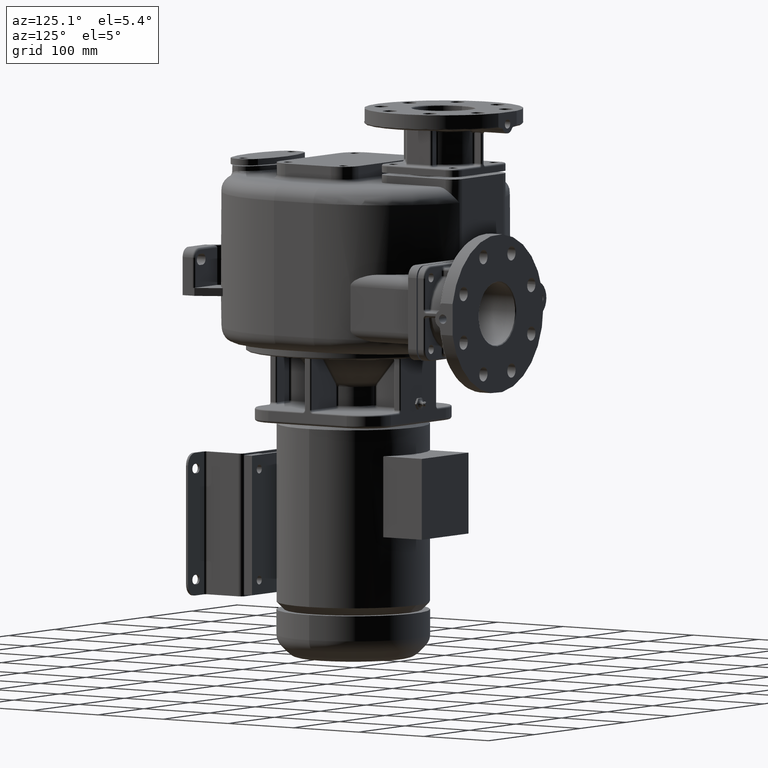
[diagram: clean part render]
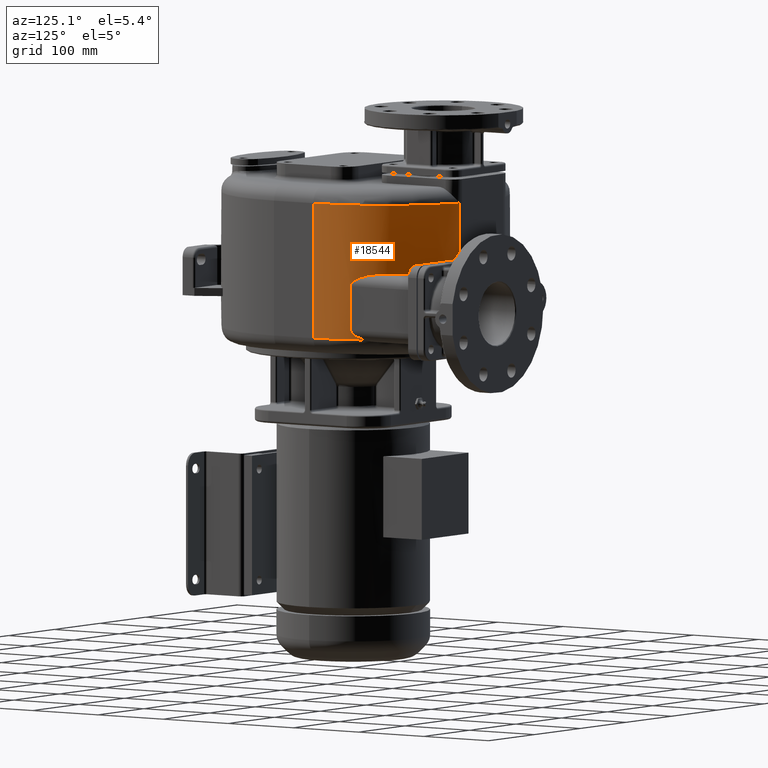
[diagram: same view with one face highlighted and labeled with its STEP entity id]
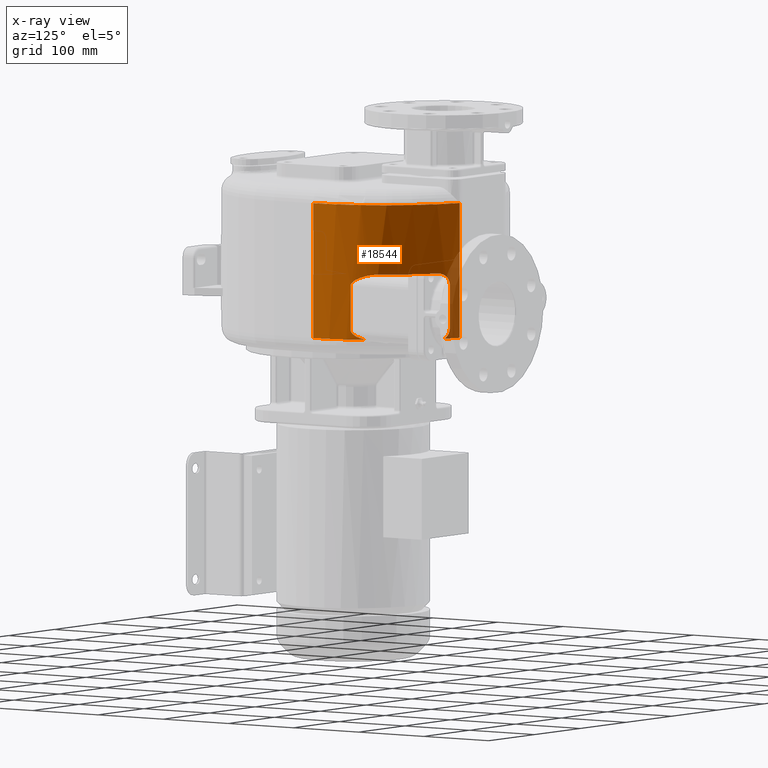
[diagram: x-ray of the same camera — body ghosted, the highlighted face saturated]
A machine part, auxiliary view. The second image highlights one B-rep face of the part: STEP entity #18544.
The next image is the same camera in x-ray: the body ghosted, the highlighted face saturated — about 6% of this face is hidden behind the body in this view.
In plain terms, the highlighted cylindrical surface (partial cylindrical patch) has radius 157 mm, axis along (0, 0, -1).
Its self-contained STEP definition (entity closure, byte-faithful):
#1608=CARTESIAN_POINT('',(6.575347980245E1,2.092268910788E2,1.175000000315E2));
#1609=CARTESIAN_POINT('',(6.575347980245E1,2.092268910788E2,1.363888889181E2));
#1610=CARTESIAN_POINT('',(6.575354041144E1,2.092268708281E2,1.741666666906E2));
#1611=CARTESIAN_POINT('',(6.575351561685E1,2.092268791124E2,2.308333333567E2));
#1612=CARTESIAN_POINT('',(6.575352112676E1,2.092268772715E2,2.686111111202E2));
#1613=CARTESIAN_POINT('',(6.575352112676E1,2.092268772715E2,2.875E2));
#1634=DIRECTION('',(0.E0,0.E0,-1.E0));
#1635=VECTOR('',#1634,5.5E1);
#1636=CARTESIAN_POINT('',(7.95E1,2.039042356408E2,1.85E2));
#1637=LINE('',#1636,#1635);
#1638=CARTESIAN_POINT('',(1.6E1,6.031889516343E1,2.E2));
#1639=DIRECTION('',(0.E0,0.E0,-1.E0));
#1640=DIRECTION('',(5.E-1,8.660254037844E-1,0.E0));
#1641=AXIS2_PLACEMENT_3D('',#1638,#1639,#1640);
#1643=DIRECTION('',(0.E0,0.E0,-1.E0));
#1644=VECTOR('',#1643,5.5E1);
#1645=CARTESIAN_POINT('',(1.645E2,1.112772114621E2,1.85E2));
#1646=LINE('',#1645,#1644);
#1647=CARTESIAN_POINT('',(1.6E1,6.031889516343E1,2.875E2));
#1648=DIRECTION('',(0.E0,0.E0,1.E0));
#1649=DIRECTION('',(1.E0,0.E0,0.E0));
#1650=AXIS2_PLACEMENT_3D('',#1647,#1648,#1649);
#1652=CARTESIAN_POINT('',(1.6E1,6.031889516343E1,1.175E2));
#1653=DIRECTION('',(0.E0,0.E0,1.E0));
#1654=DIRECTION('',(1.E0,0.E0,0.E0));
#1655=AXIS2_PLACEMENT_3D('',#1652,#1653,#1654);
#1662=CARTESIAN_POINT('',(1.6E1,6.031889516343E1,1.175E2));
#1663=DIRECTION('',(0.E0,0.E0,1.E0));
#1664=DIRECTION('',(4.471875033383E-1,8.944402366050E-1,0.E0));
#1665=AXIS2_PLACEMENT_3D('',#1662,#1663,#1664);
#1683=CARTESIAN_POINT('',(1.577915619759E2,1.277292278465E2,1.175E2));
#1685=CARTESIAN_POINT('',(1.577915619759E2,1.277292278465E2,1.175E2));
#1686=CARTESIAN_POINT('',(1.579774114180E2,1.273383102876E2,1.176232785734E2));
#1687=CARTESIAN_POINT('',(1.583406059592E2,1.265660400700E2,1.178761052002E2));
#1688=CARTESIAN_POINT('',(1.588617860967E2,1.254342601203E2,1.182740479278E2));
#1689=CARTESIAN_POINT('',(1.593562420937E2,1.243380424825E2,1.186867327161E2));
#1690=CARTESIAN_POINT('',(1.598228078874E2,1.232825614001E2,1.191110638367E2));
#1691=CARTESIAN_POINT('',(1.602595836933E2,1.222749525463E2,1.195427825042E2));
#1692=CARTESIAN_POINT('',(1.606660566391E2,1.213194705353E2,1.199783404927E2));
#1693=CARTESIAN_POINT('',(1.610422113800E2,1.204192546658E2,1.204143956315E2));
#1694=CARTESIAN_POINT('',(1.613881435205E2,1.195771800803E2,1.208473842143E2));
#1695=CARTESIAN_POINT('',(1.617050404126E2,1.187933455383E2,1.212748982751E2));
#1696=CARTESIAN_POINT('',(1.619938860405E2,1.180681077680E2,1.216942679077E2));
#1697=CARTESIAN_POINT('',(1.622558094013E2,1.174012463614E2,1.221029013661E2));
#1698=CARTESIAN_POINT('',(1.624933149777E2,1.167887124546E2,1.225005323173E2));
#1699=CARTESIAN_POINT('',(1.627086549914E2,1.162266844507E2,1.228870686090E2));
#1700=CARTESIAN_POINT('',(1.629040359933E2,1.157111059609E2,1.232628484497E2));
#1701=CARTESIAN_POINT('',(1.630816139096E2,1.152377129321E2,1.236287690908E2));
#1702=CARTESIAN_POINT('',(1.632421143219E2,1.148058090159E2,1.239831620341E2));
#1703=CARTESIAN_POINT('',(1.633864081142E2,1.144141736040E2,1.243245013260E2));
#1704=CARTESIAN_POINT('',(1.635161965385E2,1.140591481479E2,1.246534099018E2));
#1705=CARTESIAN_POINT('',(1.636330456666E2,1.137372366846E2,1.249707295357E2));
#1706=CARTESIAN_POINT('',(1.637384344645E2,1.134450095583E2,1.252776449268E2));
#1707=CARTESIAN_POINT('',(1.638332504684E2,1.131805425714E2,1.255740652944E2));
#1708=CARTESIAN_POINT('',(1.639185178887E2,1.129414324329E2,1.258605565945E2));
#1709=CARTESIAN_POINT('',(1.639952089621E2,1.127253250070E2,1.261379414217E2));
#1710=CARTESIAN_POINT('',(1.640640527267E2,1.125304750350E2,1.264065229543E2));
#1711=CARTESIAN_POINT('',(1.641258319066E2,1.123549240043E2,1.266671032736E2));
#1712=CARTESIAN_POINT('',(1.641812944257E2,1.121967552657E2,1.269208125398E2));
#1713=CARTESIAN_POINT('',(1.642308801662E2,1.120548872040E2,1.271677447829E2));
#1714=CARTESIAN_POINT('',(1.642750525793E2,1.119281397378E2,1.274082380144E2));
#1715=CARTESIAN_POINT('',(1.643143516841E2,1.118150825252E2,1.276434173630E2));
#1716=CARTESIAN_POINT('',(1.643491168214E2,1.117148369841E2,1.278736440328E2));
#1717=CARTESIAN_POINT('',(1.643796492120E2,1.116266161032E2,1.280992294102E2));
#1718=CARTESIAN_POINT('',(1.644062293997E2,1.115496767534E2,1.283205343956E2));
#1719=CARTESIAN_POINT('',(1.644291815971E2,1.114831351635E2,1.285387200277E2));
#1720=CARTESIAN_POINT('',(1.644486682357E2,1.114265647495E2,1.287539430017E2));
#1721=CARTESIAN_POINT('',(1.644648381343E2,1.113795698584E2,1.289663097196E2));
#1722=CARTESIAN_POINT('',(1.644778303169E2,1.113417754636E2,1.291759052215E2));
#1723=CARTESIAN_POINT('',(1.644878032617E2,1.113127428933E2,1.293835337971E2));
#1724=CARTESIAN_POINT('',(1.644948552200E2,1.112922025784E2,1.295896267026E2));
#1725=CARTESIAN_POINT('',(1.644990652908E2,1.112799354637E2,1.297948788596E2));
#1726=CARTESIAN_POINT('',(1.645E2,1.112772114621E2,1.299316681826E2));
#1727=CARTESIAN_POINT('',(1.645E2,1.112772114621E2,1.3E2));
#1742=CARTESIAN_POINT('',(7.95E1,2.039042356408E2,1.3E2));
#1743=CARTESIAN_POINT('',(7.95E1,2.039042356408E2,1.298540586880E2));
#1744=CARTESIAN_POINT('',(7.950425967353E1,2.039023519318E2,1.295621135802E2));
#1745=CARTESIAN_POINT('',(7.952344486648E1,2.038938658319E2,1.291243107373E2));
#1746=CARTESIAN_POINT('',(7.955541699635E1,2.038797169272E2,1.286872107202E2));
#1747=CARTESIAN_POINT('',(7.960011872968E1,2.038599204051E2,1.282514098962E2));
#1748=CARTESIAN_POINT('',(7.965760236365E1,2.038344388444E2,1.278165541478E2));
#1749=CARTESIAN_POINT('',(7.972783668170E1,2.038032676950E2,1.273832432875E2));
#1750=CARTESIAN_POINT('',(7.981072285965E1,2.037664284831E2,1.269521461568E2));
#1751=CARTESIAN_POINT('',(7.990628535920E1,2.037238840252E2,1.265232261815E2));
#1752=CARTESIAN_POINT('',(8.001454685303E1,2.036755937539E2,1.260966296235E2));
#1753=CARTESIAN_POINT('',(8.013540823443E1,2.036215673661E2,1.256729685733E2));
#1754=CARTESIAN_POINT('',(8.026869858639E1,2.035618432329E2,1.252529057271E2));
#1755=CARTESIAN_POINT('',(8.041457251687E1,2.034963099822E2,1.248361007189E2));
#1756=CARTESIAN_POINT('',(8.057293294331E1,2.034249648632E2,1.244230730989E2));
#1757=CARTESIAN_POINT('',(8.074362257130E1,2.033478288676E2,1.240143912432E2));
#1758=CARTESIAN_POINT('',(8.092650966879E1,2.032649084191E2,1.236104737727E2));
#1759=CARTESIAN_POINT('',(8.112178159326E1,2.031760611900E2,1.232110894562E2));
#1760=CARTESIAN_POINT('',(8.132922917065E1,2.030813207701E2,1.228168942469E2));
#1761=CARTESIAN_POINT('',(8.154858100674E1,2.029807471761E2,1.224285271400E2));
#1762=CARTESIAN_POINT('',(8.177997720305E1,2.028742085621E2,1.220458906086E2));
#1763=CARTESIAN_POINT('',(8.202335527249E1,2.027616616180E2,1.216693030020E2));
#1764=CARTESIAN_POINT('',(8.227845291156E1,2.026431526319E2,1.212993562084E2));
#1765=CARTESIAN_POINT('',(8.254503450639E1,2.025187141880E2,1.209365250231E2));
#1766=CARTESIAN_POINT('',(8.282333793509E1,2.023881541565E2,1.205806687802E2));
#1767=CARTESIAN_POINT('',(8.311304210366E1,2.022515380629E2,1.202324145503E2));
#1768=CARTESIAN_POINT('',(8.341382102418E1,2.021089339458E2,1.198923010180E2));
#1769=CARTESIAN_POINT('',(8.372590779121E1,2.019601417498E2,1.195602490877E2));
#1770=CARTESIAN_POINT('',(8.404899104081E1,2.018052162977E2,1.192368108923E2));
#1771=CARTESIAN_POINT('',(8.438265769993E1,2.016442623330E2,1.189225607879E2));
#1772=CARTESIAN_POINT('',(8.472709769304E1,2.014770917826E2,1.186175044465E2));
#1773=CARTESIAN_POINT('',(8.508196550308E1,2.013037722724E2,1.183221630634E2));
#1774=CARTESIAN_POINT('',(8.544689303179E1,2.011243843789E2,1.180370138266E2));
#1775=CARTESIAN_POINT('',(8.582203736165E1,2.009387483483E2,1.177621359035E2));
#1776=CARTESIAN_POINT('',(8.607858273325E1,2.008109352208E2,1.175861362554E2));
#1777=CARTESIAN_POINT('',(8.620843802411E1,2.007460123104E2,1.175E2));
#1779=CARTESIAN_POINT('',(8.620843802411E1,2.007460123104E2,1.175E2));
#1814=CARTESIAN_POINT('',(9.45E1,1.962848835576E2,2.E2));
#1815=CARTESIAN_POINT('',(9.432957188309E1,1.963832802768E2,2.E2));
#1816=CARTESIAN_POINT('',(9.398925822237E1,1.965789059500E2,1.999941923492E2));
#1817=CARTESIAN_POINT('',(9.348068354170E1,1.968687288200E2,1.999682047836E2));
#1818=CARTESIAN_POINT('',(9.297503946169E1,1.971543975415E2,1.999251464169E2));
#1819=CARTESIAN_POINT('',(9.247297954652E1,1.974356074237E2,1.998652668038E2));
#1820=CARTESIAN_POINT('',(9.197459165087E1,1.977123761376E2,1.997887384372E2));
#1821=CARTESIAN_POINT('',(9.148085410656E1,1.979842327954E2,1.996958668437E2));
#1822=CARTESIAN_POINT('',(9.099265133926E1,1.982507770010E2,1.995870352443E2));
#1823=CARTESIAN_POINT('',(9.050996131750E1,1.985121101806E2,1.994624387098E2));
#1824=CARTESIAN_POINT('',(9.003352500484E1,1.987679220589E2,1.993224438839E2));
#1825=CARTESIAN_POINT('',(8.956415181926E1,1.990178795512E2,1.991675166534E2));
#1826=CARTESIAN_POINT('',(8.910175828627E1,1.992621299485E2,1.989978410484E2));
#1827=CARTESIAN_POINT('',(8.864699128275E1,1.995004340917E2,1.988138378803E2));
#1828=CARTESIAN_POINT('',(8.820057983594E1,1.997325206160E2,1.986160369089E2));
#1829=CARTESIAN_POINT('',(8.776241861821E1,1.999585549950E2,1.984046111209E2));
#1830=CARTESIAN_POINT('',(8.733304413375E1,2.001783695195E2,1.981800088143E2));
#1831=CARTESIAN_POINT('',(8.691306828905E1,2.003917654439E2,1.979427868500E2));
#1832=CARTESIAN_POINT('',(8.650232284101E1,2.005989410746E2,1.976930650719E2));
#1833=CARTESIAN_POINT('',(8.610136623430E1,2.007997254337E2,1.974313718344E2));
#1834=CARTESIAN_POINT('',(8.571066967452E1,2.009939970208E2,1.971582547799E2));
#1835=CARTESIAN_POINT('',(8.533004171557E1,2.011819622480E2,1.968737887683E2));
#1836=CARTESIAN_POINT('',(8.496002718461E1,2.013634609077E2,1.965785698042E2));
#1837=CARTESIAN_POINT('',(8.460093131792E1,2.015384538880E2,1.962730788414E2));
#1838=CARTESIAN_POINT('',(8.425259719871E1,2.017071240116E2,1.959573786826E2));
#1839=CARTESIAN_POINT('',(8.391555286277E1,2.018693196590E2,1.956321358626E2));
#1840=CARTESIAN_POINT('',(8.358997236599E1,2.020250612529E2,1.952977526288E2));
#1841=CARTESIAN_POINT('',(8.327573298397E1,2.021745068873E2,1.949542875830E2));
#1842=CARTESIAN_POINT('',(8.297330206887E1,2.023175310868E2,1.946024331776E2));
#1843=CARTESIAN_POINT('',(8.268283207711E1,2.024541576178E2,1.942426004136E2));
#1844=CARTESIAN_POINT('',(8.240417264422E1,2.025845481400E2,1.938747818069E2));
#1845=CARTESIAN_POINT('',(8.213772339793E1,2.027086032798E2,1.934996729738E2));
#1846=CARTESIAN_POINT('',(8.188365296205E1,2.028263305492E2,1.931177454419E2));
#1847=CARTESIAN_POINT('',(8.164177400388E1,2.029378978718E2,1.927288929092E2));
#1848=CARTESIAN_POINT('',(8.141241266662E1,2.030432319517E2,1.923337851433E2));
#1849=CARTESIAN_POINT('',(8.119579190242E1,2.031423054598E2,1.919330441307E2));
#1850=CARTESIAN_POINT('',(8.099169807448E1,2.032352864717E2,1.915264590729E2));
#1851=CARTESIAN_POINT('',(8.080036090562E1,2.033221361841E2,1.911146090019E2));
#1852=CARTESIAN_POINT('',(8.062200891325E1,2.034028139446E2,1.906982145310E2));
#1853=CARTESIAN_POINT('',(8.045649827331E1,2.034774435057E2,1.902771414495E2));
#1854=CARTESIAN_POINT('',(8.030392986724E1,2.035460334173E2,1.898517574924E2));
#1855=CARTESIAN_POINT('',(8.016448650902E1,2.036085518826E2,1.894227531387E2));
#1856=CARTESIAN_POINT('',(8.003818989243E1,2.036650355342E2,1.889904415348E2));
#1857=CARTESIAN_POINT('',(7.992496568731E1,2.037155593290E2,1.885546991877E2));
#1858=CARTESIAN_POINT('',(7.982497840571E1,2.037600872849E2,1.881162502289E2));
#1859=CARTESIAN_POINT('',(7.973830795877E1,2.037986172313E2,1.876757433029E2));
#1860=CARTESIAN_POINT('',(7.966485781649E1,2.038312209345E2,1.872328731482E2));
#1861=CARTESIAN_POINT('',(7.960472333599E1,2.038578804480E2,1.867882234003E2));
#1862=CARTESIAN_POINT('',(7.955796141016E1,2.038785906579E2,1.863425354318E2));
#1863=CARTESIAN_POINT('',(7.952452525069E1,2.038933879025E2,1.858956135091E2));
#1864=CARTESIAN_POINT('',(7.950445587708E1,2.039022651725E2,1.854478613652E2));
#1865=CARTESIAN_POINT('',(7.95E1,2.039042356408E2,1.851492687740E2));
#1866=CARTESIAN_POINT('',(7.95E1,2.039042356408E2,1.85E2));
#1881=CARTESIAN_POINT('',(1.645E2,1.112772114621E2,1.85E2));
#1882=CARTESIAN_POINT('',(1.645E2,1.112772114621E2,1.850689747190E2));
#1883=CARTESIAN_POINT('',(1.644990478001E2,1.112799864387E2,1.852070886596E2));
#1884=CARTESIAN_POINT('',(1.644947516085E2,1.112925044582E2,1.854145159201E2));
#1885=CARTESIAN_POINT('',(1.644875521483E2,1.113134741856E2,1.856227520430E2));
#1886=CARTESIAN_POINT('',(1.644774012472E2,1.113430241864E2,1.858319766003E2));
#1887=CARTESIAN_POINT('',(1.644642048720E2,1.113814112959E2,1.860428991922E2));
#1888=CARTESIAN_POINT('',(1.644478120174E2,1.114290519370E2,1.862563463424E2));
#1889=CARTESIAN_POINT('',(1.644280804635E2,1.114863297895E2,1.864725267966E2));
#1890=CARTESIAN_POINT('',(1.644048734400E2,1.115536049976E2,1.866915024159E2));
#1891=CARTESIAN_POINT('',(1.643779497469E2,1.116315312602E2,1.869140820517E2));
#1892=CARTESIAN_POINT('',(1.643470199100E2,1.117208899566E2,1.871410000529E2));
#1893=CARTESIAN_POINT('',(1.643117999587E2,1.118224321701E2,1.873726110670E2));
#1894=CARTESIAN_POINT('',(1.642720259841E2,1.119368357594E2,1.876090040595E2));
#1895=CARTESIAN_POINT('',(1.642272270483E2,1.120653545975E2,1.878512469194E2));
#1896=CARTESIAN_POINT('',(1.641769405249E2,1.122091919836E2,1.880999200911E2));
#1897=CARTESIAN_POINT('',(1.641207495407E2,1.123693919174E2,1.883551707478E2));
#1898=CARTESIAN_POINT('',(1.640580408943E2,1.125475244395E2,1.886178193486E2));
#1899=CARTESIAN_POINT('',(1.639880670835E2,1.127454939793E2,1.888888270675E2));
#1900=CARTESIAN_POINT('',(1.639101672342E2,1.129649054602E2,1.891684826846E2));
#1901=CARTESIAN_POINT('',(1.638234610429E2,1.132079194971E2,1.894575863758E2));
#1902=CARTESIAN_POINT('',(1.637270035988E2,1.134767954458E2,1.897567443215E2));
#1903=CARTESIAN_POINT('',(1.636199562976E2,1.137734089512E2,1.900659722471E2));
#1904=CARTESIAN_POINT('',(1.635009185014E2,1.141010828676E2,1.903865623672E2));
#1905=CARTESIAN_POINT('',(1.633684543441E2,1.144630854049E2,1.907193374267E2));
#1906=CARTESIAN_POINT('',(1.632210785481E2,1.148626423139E2,1.910647415841E2));
#1907=CARTESIAN_POINT('',(1.630581567759E2,1.153005095111E2,1.914210310411E2));
#1908=CARTESIAN_POINT('',(1.628785129953E2,1.157787679685E2,1.917877429497E2));
#1909=CARTESIAN_POINT('',(1.626799565095E2,1.163019680747E2,1.921660625296E2));
#1910=CARTESIAN_POINT('',(1.624604034843E2,1.168740624756E2,1.925563227733E2));
#1911=CARTESIAN_POINT('',(1.622175719903E2,1.174991826058E2,1.929586820239E2));
#1912=CARTESIAN_POINT('',(1.619493431826E2,1.181806564742E2,1.933724950331E2));
#1913=CARTESIAN_POINT('',(1.616544130183E2,1.189194068643E2,1.937956112971E2));
#1914=CARTESIAN_POINT('',(1.613312997199E2,1.197165294033E2,1.942261036261E2));
#1915=CARTESIAN_POINT('',(1.609786020928E2,1.205726150914E2,1.946618010040E2));
#1916=CARTESIAN_POINT('',(1.605958920095E2,1.214856819665E2,1.950993936541E2));
#1917=CARTESIAN_POINT('',(1.601825211007E2,1.224541663948E2,1.955360373161E2));
#1918=CARTESIAN_POINT('',(1.597385923620E2,1.234746605079E2,1.959682520868E2));
#1919=CARTESIAN_POINT('',(1.592653628613E2,1.245412392561E2,1.963918910792E2));
#1920=CARTESIAN_POINT('',(1.587638543191E2,1.256487721482E2,1.968035561153E2));
#1921=CARTESIAN_POINT('',(1.582359239464E2,1.267905794899E2,1.971996231487E2));
#1922=CARTESIAN_POINT('',(1.576841231950E2,1.279589618276E2,1.975765859374E2));
#1923=CARTESIAN_POINT('',(1.571106269477E2,1.291475346025E2,1.979317877324E2));
#1924=CARTESIAN_POINT('',(1.565180940174E2,1.303493910855E2,1.982627448076E2));
#1925=CARTESIAN_POINT('',(1.559096507326E2,1.315572499888E2,1.985672707512E2));
#1926=CARTESIAN_POINT('',(1.552877214667E2,1.327657560808E2,1.988440082373E2));
#1927=CARTESIAN_POINT('',(1.546551545342E2,1.339691640947E2,1.990917538905E2));
#1928=CARTESIAN_POINT('',(1.540152457532E2,1.351613839967E2,1.993095764628E2));
#1929=CARTESIAN_POINT('',(1.533699533827E2,1.363392325509E2,1.994973465930E2));
#1930=CARTESIAN_POINT('',(1.527212171885E2,1.374997921185E2,1.996550739131E2));
#1931=CARTESIAN_POINT('',(1.520712623656E2,1.386398845036E2,1.997828836792E2));
#1932=CARTESIAN_POINT('',(1.514218777730E2,1.397573128008E2,1.998811552960E2));
#1933=CARTESIAN_POINT('',(1.507752315236E2,1.408494080840E2,1.999503616198E2));
#1934=CARTESIAN_POINT('',(1.501332375499E2,1.419141012527E2,1.999911682460E2));
#1935=CARTESIAN_POINT('',(1.497102192386E2,1.426033823614E2,2.E2));
#1936=CARTESIAN_POINT('',(1.495E2,1.429430441757E2,2.E2));
#2183=CARTESIAN_POINT('',(6.575349946129E1,2.092268839746E2,1.175045084970E2));
#3415=DIRECTION('',(0.E0,-4.810792287411E-14,1.E0));
#3416=VECTOR('',#3415,1.7E2);
#3417=CARTESIAN_POINT('',(1.73E2,6.031889516342E1,1.175E2));
#3418=LINE('',#3417,#3416);
#15741=CARTESIAN_POINT('',(1.645E2,1.112772114621E2,1.85E2));
#15743=VERTEX_POINT('',#15741);
#15745=CARTESIAN_POINT('',(1.495E2,1.429430441757E2,2.E2));
#15747=VERTEX_POINT('',#15745);
#15749=CARTESIAN_POINT('',(9.45E1,1.962848835576E2,2.E2));
#15751=VERTEX_POINT('',#15749);
#15753=CARTESIAN_POINT('',(7.95E1,2.039042356408E2,1.85E2));
#15755=VERTEX_POINT('',#15753);
#15757=CARTESIAN_POINT('',(7.95E1,2.039042356408E2,1.3E2));
#15759=VERTEX_POINT('',#15757);
#15769=CARTESIAN_POINT('',(1.645E2,1.112772114621E2,1.3E2));
#15771=VERTEX_POINT('',#15769);
#15773=VERTEX_POINT('',#1779);
#15774=VERTEX_POINT('',#1683);
#15779=CARTESIAN_POINT('',(1.73E2,6.031889516343E1,2.875E2));
#15780=CARTESIAN_POINT('',(6.575352112676E1,2.092268772715E2,2.875E2));
#15781=VERTEX_POINT('',#15779);
#15782=VERTEX_POINT('',#15780);
#15819=CARTESIAN_POINT('',(1.73E2,6.031889516342E1,1.175E2));
#15821=VERTEX_POINT('',#15819);
#15831=VERTEX_POINT('',#2183);
#18514=CARTESIAN_POINT('',(1.6E1,6.031889516343E1,9.75E1));
#18515=DIRECTION('',(0.E0,0.E0,-1.E0));
#18516=DIRECTION('',(-1.E0,0.E0,0.E0));
#18517=AXIS2_PLACEMENT_3D('',#18514,#18515,#18516);
#18518=CYLINDRICAL_SURFACE('',#18517,1.57E2);
#18520=ORIENTED_EDGE('',*,*,#18519,.F.);
#18522=ORIENTED_EDGE('',*,*,#18521,.F.);
#18524=ORIENTED_EDGE('',*,*,#18523,.F.);
#18526=ORIENTED_EDGE('',*,*,#18525,.F.);
#18528=ORIENTED_EDGE('',*,*,#18527,.T.);
#18530=ORIENTED_EDGE('',*,*,#18529,.F.);
#18532=ORIENTED_EDGE('',*,*,#18531,.T.);
#18534=ORIENTED_EDGE('',*,*,#18533,.F.);
#18536=ORIENTED_EDGE('',*,*,#18535,.F.);
#18538=ORIENTED_EDGE('',*,*,#18537,.T.);
#18540=ORIENTED_EDGE('',*,*,#18539,.T.);
#18541=ORIENTED_EDGE('',*,*,#18501,.F.);
#18542=EDGE_LOOP('',(#18520,#18522,#18524,#18526,#18528,#18530,#18532,#18534,
#18536,#18538,#18540,#18541));
#18543=FACE_OUTER_BOUND('',#18542,.F.);
#18544=ADVANCED_FACE('',(#18543),#18518,.T.);
#1614=B_SPLINE_CURVE_WITH_KNOTS('',3,(#1608,#1609,#1610,#1611,#1612,#1613),
.UNSPECIFIED.,.F.,.F.,(4,1,1,4),(0.E0,3.333333333333E-1,6.666666666667E-1,1.E0),
.UNSPECIFIED.);
#1642=CIRCLE('',#1641,1.57E2);
#1651=CIRCLE('',#1650,1.57E2);
#1656=CIRCLE('',#1655,1.57E2);
#1666=CIRCLE('',#1665,1.57E2);
#1728=B_SPLINE_CURVE_WITH_KNOTS('',3,(#1685,#1686,#1687,#1688,#1689,#1690,#1691,
#1692,#1693,#1694,#1695,#1696,#1697,#1698,#1699,#1700,#1701,#1702,#1703,#1704,
#1705,#1706,#1707,#1708,#1709,#1710,#1711,#1712,#1713,#1714,#1715,#1716,#1717,
#1718,#1719,#1720,#1721,#1722,#1723,#1724,#1725,#1726,#1727),.UNSPECIFIED.,.F.,
.F.,(4,1,1,1,1,1,1,1,1,1,1,1,1,1,1,1,1,1,1,1,1,1,1,1,1,1,1,1,1,1,1,1,1,1,1,1,1,
1,1,1,4),(0.E0,2.5E-2,5.E-2,7.5E-2,1.E-1,1.25E-1,1.5E-1,1.75E-1,2.E-1,2.25E-1,
2.5E-1,2.75E-1,3.E-1,3.25E-1,3.5E-1,3.75E-1,4.E-1,4.25E-1,4.5E-1,4.75E-1,5.E-1,
5.25E-1,5.5E-1,5.75E-1,6.E-1,6.25E-1,6.5E-1,6.75E-1,7.E-1,7.25E-1,7.5E-1,
7.75E-1,8.E-1,8.25E-1,8.5E-1,8.75E-1,9.E-1,9.25E-1,9.5E-1,9.75E-1,1.E0),
.UNSPECIFIED.);
#1778=B_SPLINE_CURVE_WITH_KNOTS('',3,(#1742,#1743,#1744,#1745,#1746,#1747,#1748,
#1749,#1750,#1751,#1752,#1753,#1754,#1755,#1756,#1757,#1758,#1759,#1760,#1761,
#1762,#1763,#1764,#1765,#1766,#1767,#1768,#1769,#1770,#1771,#1772,#1773,#1774,
#1775,#1776,#1777),.UNSPECIFIED.,.F.,.F.,(4,1,1,1,1,1,1,1,1,1,1,1,1,1,1,1,1,1,1,
1,1,1,1,1,1,1,1,1,1,1,1,1,1,4),(0.E0,3.030303030303E-2,6.060606060606E-2,
9.090909090909E-2,1.212121212121E-1,1.515151515152E-1,1.818181818182E-1,
2.121212121212E-1,2.424242424242E-1,2.727272727273E-1,3.030303030303E-1,
3.333333333333E-1,3.636363636364E-1,3.939393939394E-1,4.242424242424E-1,
4.545454545455E-1,4.848484848485E-1,5.151515151515E-1,5.454545454545E-1,
5.757575757576E-1,6.060606060606E-1,6.363636363636E-1,6.666666666667E-1,
6.969696969697E-1,7.272727272727E-1,7.575757575758E-1,7.878787878788E-1,
8.181818181818E-1,8.484848484848E-1,8.787878787879E-1,9.090909090909E-1,
9.393939393939E-1,9.696969696970E-1,1.E0),.UNSPECIFIED.);
#1867=B_SPLINE_CURVE_WITH_KNOTS('',3,(#1814,#1815,#1816,#1817,#1818,#1819,#1820,
#1821,#1822,#1823,#1824,#1825,#1826,#1827,#1828,#1829,#1830,#1831,#1832,#1833,
#1834,#1835,#1836,#1837,#1838,#1839,#1840,#1841,#1842,#1843,#1844,#1845,#1846,
#1847,#1848,#1849,#1850,#1851,#1852,#1853,#1854,#1855,#1856,#1857,#1858,#1859,
#1860,#1861,#1862,#1863,#1864,#1865,#1866),.UNSPECIFIED.,.F.,.F.,(4,1,1,1,1,1,1,
1,1,1,1,1,1,1,1,1,1,1,1,1,1,1,1,1,1,1,1,1,1,1,1,1,1,1,1,1,1,1,1,1,1,1,1,1,1,1,1,
1,1,1,4),(0.E0,2.E-2,4.E-2,6.E-2,8.E-2,1.E-1,1.2E-1,1.4E-1,1.6E-1,1.8E-1,2.E-1,
2.2E-1,2.4E-1,2.6E-1,2.8E-1,3.E-1,3.2E-1,3.4E-1,3.6E-1,3.8E-1,4.E-1,4.2E-1,
4.4E-1,4.6E-1,4.8E-1,5.E-1,5.2E-1,5.4E-1,5.6E-1,5.8E-1,6.E-1,6.2E-1,6.4E-1,
6.6E-1,6.8E-1,7.E-1,7.2E-1,7.4E-1,7.6E-1,7.8E-1,8.E-1,8.2E-1,8.4E-1,8.6E-1,
8.8E-1,9.E-1,9.2E-1,9.4E-1,9.6E-1,9.8E-1,1.E0),.UNSPECIFIED.);
#1937=B_SPLINE_CURVE_WITH_KNOTS('',3,(#1881,#1882,#1883,#1884,#1885,#1886,#1887,
#1888,#1889,#1890,#1891,#1892,#1893,#1894,#1895,#1896,#1897,#1898,#1899,#1900,
#1901,#1902,#1903,#1904,#1905,#1906,#1907,#1908,#1909,#1910,#1911,#1912,#1913,
#1914,#1915,#1916,#1917,#1918,#1919,#1920,#1921,#1922,#1923,#1924,#1925,#1926,
#1927,#1928,#1929,#1930,#1931,#1932,#1933,#1934,#1935,#1936),.UNSPECIFIED.,.F.,
.F.,(4,1,1,1,1,1,1,1,1,1,1,1,1,1,1,1,1,1,1,1,1,1,1,1,1,1,1,1,1,1,1,1,1,1,1,1,1,
1,1,1,1,1,1,1,1,1,1,1,1,1,1,1,1,4),(0.E0,1.886792452830E-2,3.773584905660E-2,
5.660377358491E-2,7.547169811321E-2,9.433962264151E-2,1.132075471698E-1,
1.320754716981E-1,1.509433962264E-1,1.698113207547E-1,1.886792452830E-1,
2.075471698113E-1,2.264150943396E-1,2.452830188679E-1,2.641509433962E-1,
2.830188679245E-1,3.018867924528E-1,3.207547169811E-1,3.396226415094E-1,
3.584905660377E-1,3.773584905660E-1,3.962264150943E-1,4.150943396226E-1,
4.339622641509E-1,4.528301886792E-1,4.716981132075E-1,4.905660377358E-1,
5.094339622642E-1,5.283018867925E-1,5.471698113208E-1,5.660377358491E-1,
5.849056603774E-1,6.037735849057E-1,6.226415094340E-1,6.415094339623E-1,
6.603773584906E-1,6.792452830189E-1,6.981132075472E-1,7.169811320755E-1,
7.358490566038E-1,7.547169811321E-1,7.735849056604E-1,7.924528301887E-1,
8.113207547170E-1,8.301886792453E-1,8.490566037736E-1,8.679245283019E-1,
8.867924528302E-1,9.056603773585E-1,9.245283018868E-1,9.433962264151E-1,
9.622641509434E-1,9.811320754717E-1,1.E0),.UNSPECIFIED.);
#18501=EDGE_CURVE('',#15831,#15782,#1614,.T.);
#18519=EDGE_CURVE('',#15773,#15831,#1666,.T.);
#18521=EDGE_CURVE('',#15759,#15773,#1778,.T.);
#18523=EDGE_CURVE('',#15755,#15759,#1637,.T.);
#18525=EDGE_CURVE('',#15751,#15755,#1867,.T.);
#18527=EDGE_CURVE('',#15751,#15747,#1642,.T.);
#18529=EDGE_CURVE('',#15743,#15747,#1937,.T.);
#18531=EDGE_CURVE('',#15743,#15771,#1646,.T.);
#18533=EDGE_CURVE('',#15774,#15771,#1728,.T.);
#18535=EDGE_CURVE('',#15821,#15774,#1656,.T.);
#18537=EDGE_CURVE('',#15821,#15781,#3418,.T.);
#18539=EDGE_CURVE('',#15781,#15782,#1651,.T.);